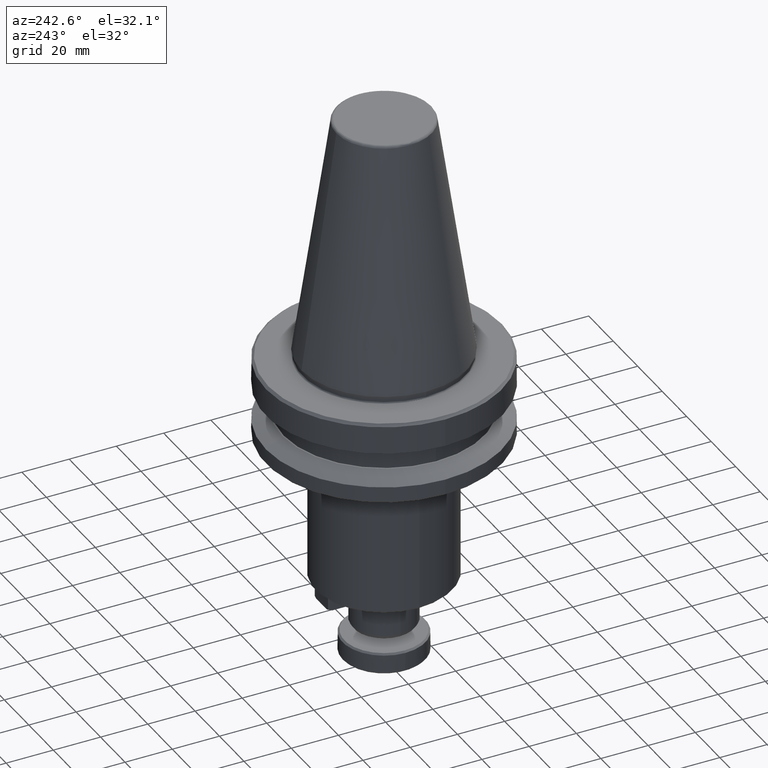
[diagram: clean part render]
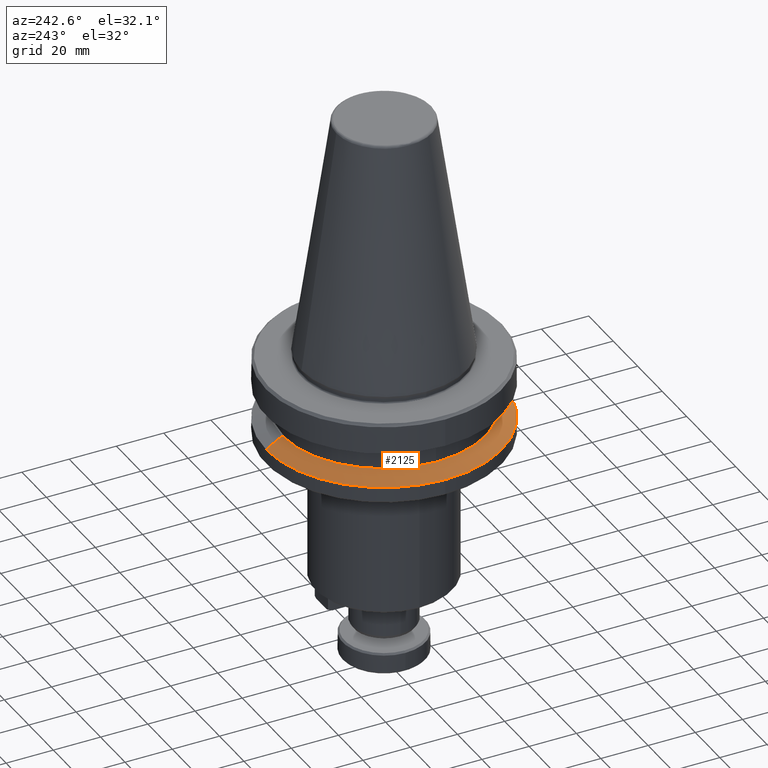
[diagram: same view with one face highlighted and labeled with its STEP entity id]
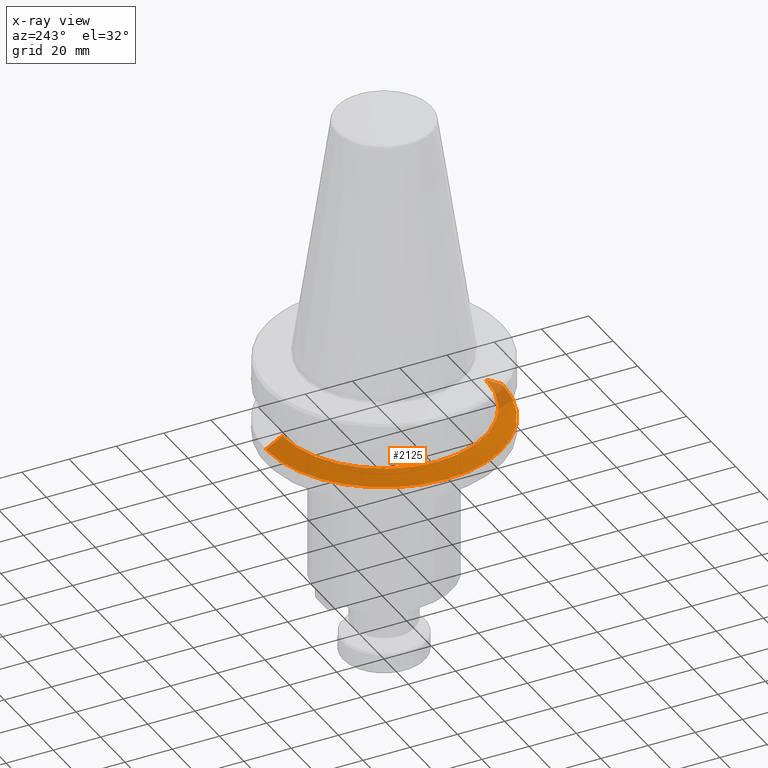
[diagram: x-ray of the same camera — body ghosted, the highlighted face saturated]
A machine part, auxiliary view. The second image highlights one B-rep face of the part: STEP entity #2125.
The next image is the same camera in x-ray: the body ghosted, the highlighted face saturated — about 6% of this face is hidden behind the body in this view.
In plain terms, the highlighted conical surface has half-angle 60 deg.
Its self-contained STEP definition (entity closure, byte-faithful):
#41 = CARTESIAN_POINT ( 'NONE',  ( 0.0000000000000000000, 43.07217782649104300, -26.69999999999998900 ) ) ;
#50 = CARTESIAN_POINT ( 'NONE',  ( 0.0000000000000000000, 0.0000000000000000000, -30.69977999677324500 ) ) ;
#73 = VERTEX_POINT ( 'NONE', #1947 ) ;
#96 = CIRCLE ( 'NONE', #2357, 50.00000000000000000 ) ;
#404 = EDGE_CURVE ( 'NONE', #1884, #73, #629, .T. ) ;
#432 = EDGE_CURVE ( 'NONE', #741, #1156, #2380, .T. ) ;
#558 = CIRCLE ( 'NONE', #1022, 43.07217782649104300 ) ;
#577 = AXIS2_PLACEMENT_3D ( 'NONE', #50, #2758, #2751 ) ;
#629 = LINE ( 'NONE', #1866, #1805 ) ;
#678 = CIRCLE ( 'NONE', #2449, 50.00000000000000000 ) ;
#741 = VERTEX_POINT ( 'NONE', #1223 ) ;
#805 = CARTESIAN_POINT ( 'NONE',  ( 6.123233995736766100E-015, -50.00000000000000000, -30.69977999677324500 ) ) ;
#827 = EDGE_CURVE ( 'NONE', #741, #1884, #558, .T. ) ;
#850 = ORIENTED_EDGE ( 'NONE', *, *, #2562, .T. ) ;
#885 = CARTESIAN_POINT ( 'NONE',  ( -50.00000000000000000, 6.123233995736766100E-015, -30.69977999677324500 ) ) ;
#983 = ORIENTED_EDGE ( 'NONE', *, *, #827, .T. ) ;
#1022 = AXIS2_PLACEMENT_3D ( 'NONE', #1073, #1071, #1068 ) ;
#1066 = VERTEX_POINT ( 'NONE', #885 ) ;
#1068 = DIRECTION ( 'NONE',  ( 0.0000000000000000000, 1.000000000000000000, 0.0000000000000000000 ) ) ;
#1071 = DIRECTION ( 'NONE',  ( 0.0000000000000000000, 3.469446951953614200E-017, -1.000000000000000000 ) ) ;
#1073 = CARTESIAN_POINT ( 'NONE',  ( 0.0000000000000000000, -1.387702451829001000E-016, -26.69999999999998900 ) ) ;
#1156 = VERTEX_POINT ( 'NONE', #805 ) ;
#1223 = CARTESIAN_POINT ( 'NONE',  ( 5.699027233244276800E-015, -43.07217782649104300, -26.69999999999998900 ) ) ;
#1437 = CONICAL_SURFACE ( 'NONE', #577, 50.00000000000000000, 1.047197551196597600 ) ;
#1455 = ORIENTED_EDGE ( 'NONE', *, *, #404, .T. ) ;
#1533 = CARTESIAN_POINT ( 'NONE',  ( 6.123233995736766100E-015, -50.00000000000000000, -30.69977999677324500 ) ) ;
#1725 = DIRECTION ( 'NONE',  ( 0.0000000000000000000, 0.8660254037844386000, -0.5000000000000001100 ) ) ;
#1755 = VECTOR ( 'NONE', #1759, 1000.000000000000000 ) ;
#1759 = DIRECTION ( 'NONE',  ( 1.060575238724906800E-016, -0.8660254037844386000, -0.5000000000000001100 ) ) ;
#1805 = VECTOR ( 'NONE', #1725, 1000.000000000000000 ) ;
#1866 = CARTESIAN_POINT ( 'NONE',  ( 0.0000000000000000000, 50.00000000000000000, -30.69977999677324500 ) ) ;
#1884 = VERTEX_POINT ( 'NONE', #41 ) ;
#1942 = EDGE_LOOP ( 'NONE', ( #2421, #983, #1455, #2589, #850 ) ) ;
#1947 = CARTESIAN_POINT ( 'NONE',  ( 0.0000000000000000000, 50.00000000000000000, -30.69977999677324500 ) ) ;
#1977 = DIRECTION ( 'NONE',  ( -1.000000000000000000, 0.0000000000000000000, 0.0000000000000000000 ) ) ;
#1979 = DIRECTION ( 'NONE',  ( -0.0000000000000000000, -0.0000000000000000000, 1.000000000000000000 ) ) ;
#1982 = CARTESIAN_POINT ( 'NONE',  ( 0.0000000000000000000, 0.0000000000000000000, -30.69977999677324500 ) ) ;
#2078 = DIRECTION ( 'NONE',  ( -1.000000000000000000, -8.881784197001252300E-016, 0.0000000000000000000 ) ) ;
#2082 = DIRECTION ( 'NONE',  ( -0.0000000000000000000, -0.0000000000000000000, 1.000000000000000000 ) ) ;
#2086 = CARTESIAN_POINT ( 'NONE',  ( 0.0000000000000000000, 0.0000000000000000000, -30.69977999677324500 ) ) ;
#2125 = ADVANCED_FACE ( 'NONE', ( #2154 ), #1437, .T. ) ;
#2154 = FACE_OUTER_BOUND ( 'NONE', #1942, .T. ) ;
#2357 = AXIS2_PLACEMENT_3D ( 'NONE', #1982, #1979, #1977 ) ;
#2380 = LINE ( 'NONE', #1533, #1755 ) ;
#2421 = ORIENTED_EDGE ( 'NONE', *, *, #432, .F. ) ;
#2449 = AXIS2_PLACEMENT_3D ( 'NONE', #2086, #2082, #2078 ) ;
#2481 = EDGE_CURVE ( 'NONE', #73, #1066, #678, .T. ) ;
#2562 = EDGE_CURVE ( 'NONE', #1066, #1156, #96, .T. ) ;
#2589 = ORIENTED_EDGE ( 'NONE', *, *, #2481, .T. ) ;
#2751 = DIRECTION ( 'NONE',  ( 0.0000000000000000000, 1.000000000000000000, 0.0000000000000000000 ) ) ;
#2758 = DIRECTION ( 'NONE',  ( 0.0000000000000000000, 3.469446951953614200E-017, -1.000000000000000000 ) ) ;